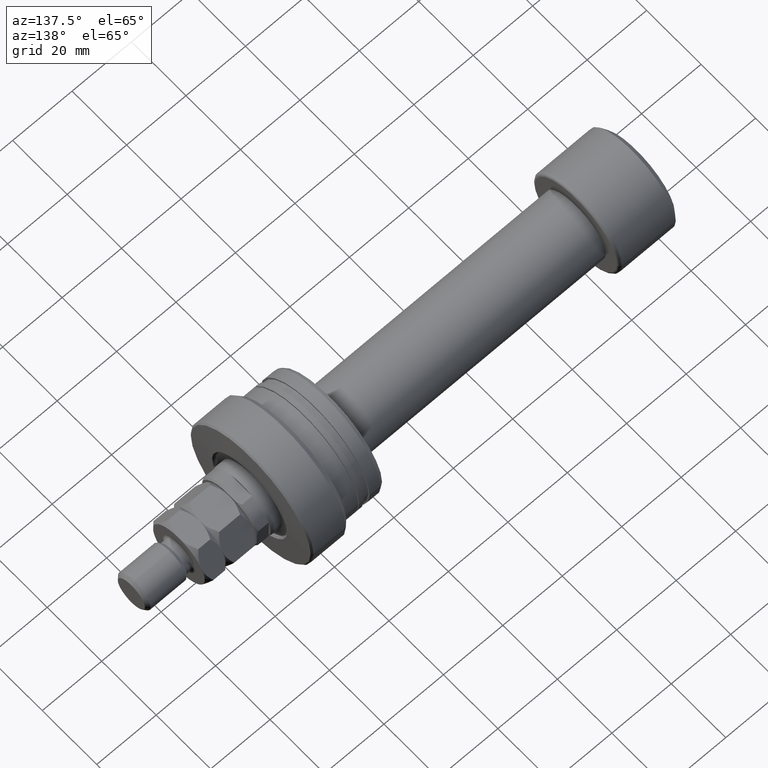
[diagram: clean part render]
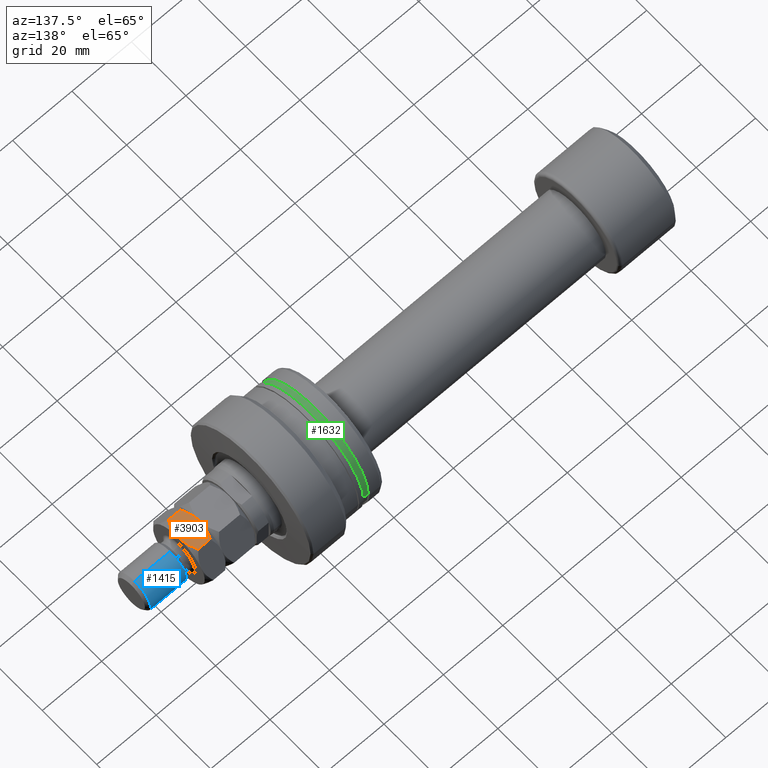
[diagram: same view with three faces highlighted in distinct colors, each labeled with its STEP entity id]
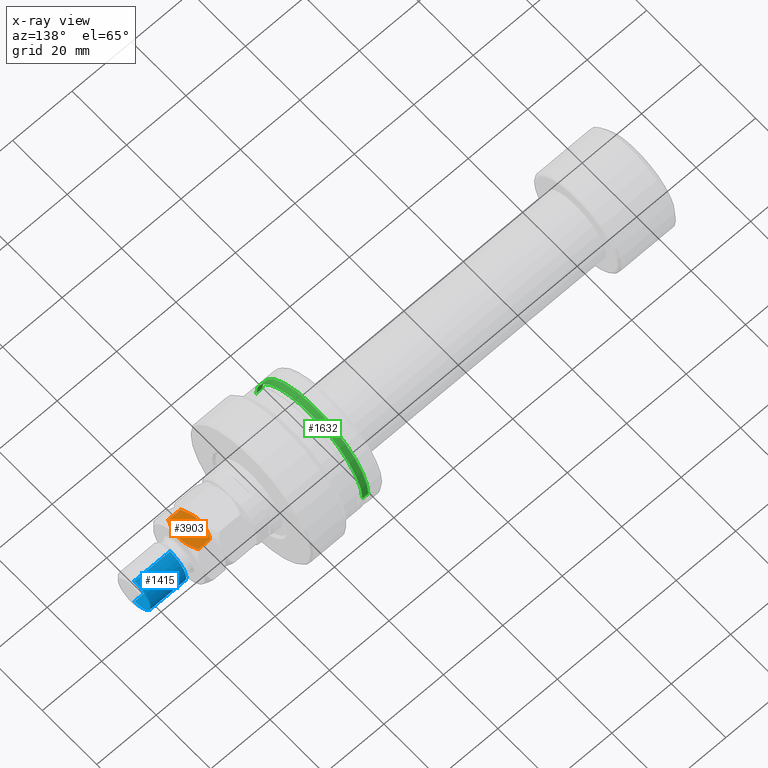
[diagram: x-ray of the same camera — body ghosted, the three highlighted faces saturated]
A machine part, auxiliary view with three faces highlighted in distinct colors.
The next image is the same camera in x-ray (body ghosted, the three faces saturated) — at least one of them is partly hidden behind the body in this view.
Their STEP definitions:

[orange] entity #3903 — the highlighted planar face has unit normal (0, -0, -1).
#103 = ORIENTED_EDGE ( 'NONE', *, *, #1419, .F. ) ;
#127 = CARTESIAN_POINT ( 'NONE',  ( -9.499999999999996447, -5.058804922144355842, 15.74335620297565086 ) ) ;
#135 = VERTEX_POINT ( 'NONE', #3658 ) ;
#150 = CARTESIAN_POINT ( 'NONE',  ( -9.500000000000000000, -4.625461644961925245, 15.94156980211695895 ) ) ;
#287 = CARTESIAN_POINT ( 'NONE',  ( -9.499999999999998224, 5.484827557301440670, 11.46965511460288312 ) ) ;
#311 = CARTESIAN_POINT ( 'NONE',  ( -9.499999999999996447, -3.283585621344903505, 10.54191787159927607 ) ) ;
#323 = CARTESIAN_POINT ( 'NONE',  ( -9.499999999999994671, 0.000000000000000000, 17.00000000000000000 ) ) ;
#359 = B_SPLINE_CURVE_WITH_KNOTS ( 'NONE', 3,
 ( #323, #948, #2305, #2647, #1707, #150, #127, #773 ),
 .UNSPECIFIED., .F., .F.,
 ( 4, 2, 2, 4 ),
 ( 0.02139070057665821978, 0.02425837263787775783, 0.02569220866848753032, 0.02712604469909729935 ),
 .UNSPECIFIED. ) ;
#593 = VERTEX_POINT ( 'NONE', #2378 ) ;
#646 = VERTEX_POINT ( 'NONE', #2107 ) ;
#770 = EDGE_CURVE ( 'NONE', #646, #135, #1798, .T. ) ;
#773 = CARTESIAN_POINT ( 'NONE',  ( -9.499999999999998224, -5.484827557301444223, 15.53034488539711511 ) ) ;
#812 = CARTESIAN_POINT ( 'NONE',  ( -9.499999999999998224, 0.4761117316842348179, 17.00000000000000000 ) ) ;
#818 = ORIENTED_EDGE ( 'NONE', *, *, #2389, .F. ) ;
#885 = B_SPLINE_CURVE_WITH_KNOTS ( 'NONE', 3,
 ( #2090, #3978, #3367, #2454, #3332, #3312, #1192, #2701, #812, #887 ),
 .UNSPECIFIED., .F., .F.,
 ( 4, 2, 2, 2, 4 ),
 ( 0.01567844649877152274, 0.01710651001824319700, 0.01853457353771487126, 0.01996263705718654552, 0.02139070057665821978 ),
 .UNSPECIFIED. ) ;
#887 = CARTESIAN_POINT ( 'NONE',  ( -9.499999999999994671, 0.000000000000000000, 17.00000000000000000 ) ) ;
#915 = CARTESIAN_POINT ( 'NONE',  ( -9.499999999999994671, 0.000000000000000000, 17.00000000000000000 ) ) ;
#919 = CARTESIAN_POINT ( 'NONE',  ( -9.499999999999998224, -5.058637179188066213, 11.25655992554618123 ) ) ;
#948 = CARTESIAN_POINT ( 'NONE',  ( -9.500000000000000000, -0.9560725362376348846, 16.99999999999999645 ) ) ;
#1121 = EDGE_CURVE ( 'NONE', #2993, #646, #1218, .T. ) ;
#1176 = B_SPLINE_CURVE_WITH_KNOTS ( 'NONE', 3,
 ( #1231, #2456, #2703, #2474, #4002, #2129, #1212, #287 ),
 .UNSPECIFIED., .F., .F.,
 ( 4, 2, 2, 4 ),
 ( 0.02139070057665822672, 0.02425837263787776477, 0.02569220866848753379, 0.02712604469909730281 ),
 .UNSPECIFIED. ) ;
#1192 = CARTESIAN_POINT ( 'NONE',  ( -9.499999999999994671, 1.905622789724482402, 16.82204041425849539 ) ) ;
#1212 = CARTESIAN_POINT ( 'NONE',  ( -9.499999999999998224, 5.058804922144354954, 11.25664379702434381 ) ) ;
#1218 = LINE ( 'NONE', #2519, #3531 ) ;
#1222 = VERTEX_POINT ( 'NONE', #915 ) ;
#1231 = CARTESIAN_POINT ( 'NONE',  ( -9.499999999999996447, 0.000000000000000000, 10.00000000000000000 ) ) ;
#1263 = CARTESIAN_POINT ( 'NONE',  ( -9.499999999999998224, -1.905622789724484401, 10.17795958574150461 ) ) ;
#1279 = CARTESIAN_POINT ( 'NONE',  ( -9.499999999999998224, -0.9601762266066399265, 10.03695139510887735 ) ) ;
#1291 = VECTOR ( 'NONE', #3779, 1000.000000000000000 ) ;
#1374 = ORIENTED_EDGE ( 'NONE', *, *, #2141, .F. ) ;
#1419 = EDGE_CURVE ( 'NONE', #2847, #1222, #885, .T. ) ;
#1700 = ORIENTED_EDGE ( 'NONE', *, *, #3836, .T. ) ;
#1707 = CARTESIAN_POINT ( 'NONE',  ( -9.499999999999998224, -3.739300393387249954, 16.29863145227363930 ) ) ;
#1798 = B_SPLINE_CURVE_WITH_KNOTS ( 'NONE', 3,
 ( #3130, #919, #1910, #1866, #311, #3420, #1263, #1279, #2163, #2523 ),
 .UNSPECIFIED., .F., .F.,
 ( 4, 2, 2, 2, 4 ),
 ( 0.01567844649877151927, 0.01710651001824319700, 0.01853457353771487126, 0.01996263705718654899, 0.02139070057665822672 ),
 .UNSPECIFIED. ) ;
#1866 = CARTESIAN_POINT ( 'NONE',  ( -9.499999999999992895, -3.733428111434933250, 10.69917511938905896 ) ) ;
#1910 = CARTESIAN_POINT ( 'NONE',  ( -9.499999999999998224, -4.621752210278242678, 11.05676471017158313 ) ) ;
#1919 = CARTESIAN_POINT ( 'NONE',  ( -9.499999999999998224, 5.484827557301440670, 17.00000000000000000 ) ) ;
#1967 = PLANE ( 'NONE',  #3443 ) ;
#2020 = CARTESIAN_POINT ( 'NONE',  ( -9.499999999999998224, -5.484827557301444223, 15.53034488539711511 ) ) ;
#2090 = CARTESIAN_POINT ( 'NONE',  ( -9.499999999999998224, 5.484827557301440670, 15.53034488539711688 ) ) ;
#2107 = CARTESIAN_POINT ( 'NONE',  ( -9.499999999999998224, -5.484827557301444223, 11.46965511460288667 ) ) ;
#2129 = CARTESIAN_POINT ( 'NONE',  ( -9.499999999999998224, 4.625461644961927021, 11.05843019788304105 ) ) ;
#2141 = EDGE_CURVE ( 'NONE', #1222, #2993, #359, .T. ) ;
#2163 = CARTESIAN_POINT ( 'NONE',  ( -9.500000000000000000, -0.4761117316842327640, 10.00000000000000355 ) ) ;
#2189 = LINE ( 'NONE', #3651, #1291 ) ;
#2305 = CARTESIAN_POINT ( 'NONE',  ( -9.499999999999998224, -1.895392204582988294, 16.85351563493425786 ) ) ;
#2351 = ORIENTED_EDGE ( 'NONE', *, *, #1121, .F. ) ;
#2378 = CARTESIAN_POINT ( 'NONE',  ( -9.499999999999998224, 5.484827557301440670, 11.46965511460288312 ) ) ;
#2389 = EDGE_CURVE ( 'NONE', #135, #593, #1176, .T. ) ;
#2454 = CARTESIAN_POINT ( 'NONE',  ( -9.499999999999998224, 3.733428111434936358, 16.30082488061093571 ) ) ;
#2456 = CARTESIAN_POINT ( 'NONE',  ( -9.499999999999998224, 0.9560725362376375491, 10.00000000000000533 ) ) ;
#2474 = CARTESIAN_POINT ( 'NONE',  ( -9.499999999999994671, 3.284280073076853768, 10.54188890834167758 ) ) ;
#2519 = CARTESIAN_POINT ( 'NONE',  ( -9.499999999999998224, -5.484827557301444223, 17.00000000000000000 ) ) ;
#2523 = CARTESIAN_POINT ( 'NONE',  ( -9.499999999999996447, 0.000000000000000000, 10.00000000000000000 ) ) ;
#2558 = DIRECTION ( 'NONE',  ( -0.000000000000000000, 0.000000000000000000, -1.000000000000000000 ) ) ;
#2647 = CARTESIAN_POINT ( 'NONE',  ( -9.499999999999994671, -3.284280073076854212, 16.45811109165831709 ) ) ;
#2701 = CARTESIAN_POINT ( 'NONE',  ( -9.500000000000000000, 0.9601762266066405926, 16.96304860489112798 ) ) ;
#2703 = CARTESIAN_POINT ( 'NONE',  ( -9.499999999999998224, 1.895392204582989848, 10.14648436506574392 ) ) ;
#2765 = CARTESIAN_POINT ( 'NONE',  ( -9.499999999999998224, 5.484827557301440670, 15.53034488539711688 ) ) ;
#2847 = VERTEX_POINT ( 'NONE', #2765 ) ;
#2860 = ORIENTED_EDGE ( 'NONE', *, *, #770, .F. ) ;
#2993 = VERTEX_POINT ( 'NONE', #2020 ) ;
#3089 = DIRECTION ( 'NONE',  ( -0.000000000000000000, -0.000000000000000000, -1.000000000000000000 ) ) ;
#3130 = CARTESIAN_POINT ( 'NONE',  ( -9.499999999999998224, -5.484827557301444223, 11.46965511460288667 ) ) ;
#3161 = DIRECTION ( 'NONE',  ( 1.000000000000000000, 0.000000000000000000, -0.000000000000000000 ) ) ;
#3312 = CARTESIAN_POINT ( 'NONE',  ( -9.499999999999998224, 2.369688663400940420, 16.71871151796998589 ) ) ;
#3332 = CARTESIAN_POINT ( 'NONE',  ( -9.499999999999998224, 3.283585621344901728, 16.45808212840071860 ) ) ;
#3367 = CARTESIAN_POINT ( 'NONE',  ( -9.499999999999998224, 4.621752210278240902, 15.94323528982842220 ) ) ;
#3420 = CARTESIAN_POINT ( 'NONE',  ( -9.500000000000000000, -2.369688663400941309, 10.28128848203001233 ) ) ;
#3443 = AXIS2_PLACEMENT_3D ( 'NONE', #1919, #3161, #2558 ) ;
#3531 = VECTOR ( 'NONE', #3089, 1000.000000000000000 ) ;
#3566 = FACE_OUTER_BOUND ( 'NONE', #3943, .T. ) ;
#3651 = CARTESIAN_POINT ( 'NONE',  ( -9.499999999999998224, 5.484827557301440670, 17.00000000000000000 ) ) ;
#3658 = CARTESIAN_POINT ( 'NONE',  ( -9.499999999999996447, 0.000000000000000000, 10.00000000000000000 ) ) ;
#3779 = DIRECTION ( 'NONE',  ( -0.000000000000000000, -0.000000000000000000, -1.000000000000000000 ) ) ;
#3836 = EDGE_CURVE ( 'NONE', #2847, #593, #2189, .T. ) ;
#3903 = ADVANCED_FACE ( 'NONE', ( #3566 ), #1967, .F. ) ;
#3943 = EDGE_LOOP ( 'NONE', ( #2860, #2351, #1374, #103, #1700, #818 ) ) ;
#3978 = CARTESIAN_POINT ( 'NONE',  ( -9.499999999999998224, 5.058637179188063548, 15.74344007445382232 ) ) ;
#4002 = CARTESIAN_POINT ( 'NONE',  ( -9.499999999999998224, 3.739300393387250843, 10.70136854772636248 ) ) ;

[blue] entity #1415 — the highlighted cylindrical surface (edge-blend (fillet) strip) has radius 6 mm, axis along (-1, -0, 0).
#172 = DIRECTION ( 'NONE',  ( 1.000000000000000000, 0.000000000000000000, 0.000000000000000000 ) ) ;
#250 = VERTEX_POINT ( 'NONE', #1561 ) ;
#595 = EDGE_CURVE ( 'NONE', #2902, #250, #2679, .T. ) ;
#742 = AXIS2_PLACEMENT_3D ( 'NONE', #1685, #2015, #172 ) ;
#777 = DIRECTION ( 'NONE',  ( -0.000000000000000000, -0.000000000000000000, -1.000000000000000000 ) ) ;
#856 = VERTEX_POINT ( 'NONE', #3555 ) ;
#918 = VERTEX_POINT ( 'NONE', #2652 ) ;
#1196 = CIRCLE ( 'NONE', #742, 6.000000000000000888 ) ;
#1274 = EDGE_LOOP ( 'NONE', ( #3140, #2114, #1666, #2403 ) ) ;
#1415 = ADVANCED_FACE ( 'NONE', ( #3886 ), #3278, .T. ) ;
#1422 = DIRECTION ( 'NONE',  ( -0.000000000000000000, -0.000000000000000000, -1.000000000000000000 ) ) ;
#1455 = CARTESIAN_POINT ( 'NONE',  ( 0.000000000000000000, 0.000000000000000000, 20.00000000000000711 ) ) ;
#1488 = DIRECTION ( 'NONE',  ( 1.000000000000000000, 0.000000000000000000, 0.000000000000000000 ) ) ;
#1561 = CARTESIAN_POINT ( 'NONE',  ( -6.000000000000000888, 0.000000000000000000, 20.00000000000000711 ) ) ;
#1666 = ORIENTED_EDGE ( 'NONE', *, *, #595, .T. ) ;
#1685 = CARTESIAN_POINT ( 'NONE',  ( 0.000000000000000000, 0.000000000000000000, 32.00000000000000000 ) ) ;
#1689 = CARTESIAN_POINT ( 'NONE',  ( 6.000000000000000888, 7.347880794884120722E-16, 33.00000000000000000 ) ) ;
#1727 = CARTESIAN_POINT ( 'NONE',  ( 0.000000000000000000, 0.000000000000000000, 33.00000000000000000 ) ) ;
#1844 = CARTESIAN_POINT ( 'NONE',  ( -6.000000000000000888, 0.000000000000000000, 33.00000000000000000 ) ) ;
#2015 = DIRECTION ( 'NONE',  ( 0.000000000000000000, 0.000000000000000000, -1.000000000000000000 ) ) ;
#2114 = ORIENTED_EDGE ( 'NONE', *, *, #2987, .T. ) ;
#2281 = EDGE_CURVE ( 'NONE', #856, #918, #1196, .T. ) ;
#2403 = ORIENTED_EDGE ( 'NONE', *, *, #3352, .F. ) ;
#2652 = CARTESIAN_POINT ( 'NONE',  ( 6.000000000000000888, 7.347880794884120722E-16, 32.00000000000000000 ) ) ;
#2661 = VECTOR ( 'NONE', #2837, 1000.000000000000000 ) ;
#2666 = DIRECTION ( 'NONE',  ( -1.000000000000000000, 0.000000000000000000, 0.000000000000000000 ) ) ;
#2679 = CIRCLE ( 'NONE', #3331, 6.000000000000000888 ) ;
#2837 = DIRECTION ( 'NONE',  ( -0.000000000000000000, -0.000000000000000000, -1.000000000000000000 ) ) ;
#2902 = VERTEX_POINT ( 'NONE', #3730 ) ;
#2981 = VECTOR ( 'NONE', #777, 1000.000000000000000 ) ;
#2987 = EDGE_CURVE ( 'NONE', #918, #2902, #3191, .T. ) ;
#3140 = ORIENTED_EDGE ( 'NONE', *, *, #2281, .T. ) ;
#3191 = LINE ( 'NONE', #1689, #2981 ) ;
#3278 = CYLINDRICAL_SURFACE ( 'NONE', #3666, 6.000000000000000888 ) ;
#3331 = AXIS2_PLACEMENT_3D ( 'NONE', #1455, #3622, #1488 ) ;
#3352 = EDGE_CURVE ( 'NONE', #856, #250, #3411, .T. ) ;
#3411 = LINE ( 'NONE', #1844, #2661 ) ;
#3555 = CARTESIAN_POINT ( 'NONE',  ( -6.000000000000000888, 0.000000000000000000, 32.00000000000000000 ) ) ;
#3622 = DIRECTION ( 'NONE',  ( -0.000000000000000000, -0.000000000000000000, 1.000000000000000000 ) ) ;
#3666 = AXIS2_PLACEMENT_3D ( 'NONE', #1727, #1422, #2666 ) ;
#3730 = CARTESIAN_POINT ( 'NONE',  ( 6.000000000000000888, 7.347880794884120722E-16, 20.00000000000000711 ) ) ;
#3886 = FACE_OUTER_BOUND ( 'NONE', #1274, .T. ) ;

[green] entity #1632 — the highlighted cylindrical surface (partial cylindrical patch) has radius 19.5 mm, axis along (-1, 0, 0).
#8 = CARTESIAN_POINT ( 'NONE',  ( -20.79999999999998650, -1.264526912837436104E-14, 0.000000000000000000 ) ) ;
#19 = VECTOR ( 'NONE', #869, 1000.000000000000000 ) ;
#91 = DIRECTION ( 'NONE',  ( -1.245442495573093370E-15, -1.000000000000000000, 0.000000000000000000 ) ) ;
#143 = DIRECTION ( 'NONE',  ( -1.245442495573093370E-15, -1.000000000000000000, 0.000000000000000000 ) ) ;
#669 = ORIENTED_EDGE ( 'NONE', *, *, #1510, .T. ) ;
#744 = VERTEX_POINT ( 'NONE', #2242 ) ;
#861 = CARTESIAN_POINT ( 'NONE',  ( -30.28002276692734895, -19.49999999999998224, 0.000000000000000000 ) ) ;
#869 = DIRECTION ( 'NONE',  ( -1.000000000000000000, 1.333885945136072597E-15, -0.000000000000000000 ) ) ;
#924 = FACE_OUTER_BOUND ( 'NONE', #3935, .T. ) ;
#1117 = ORIENTED_EDGE ( 'NONE', *, *, #1734, .F. ) ;
#1252 = AXIS2_PLACEMENT_3D ( 'NONE', #1268, #2203, #2167 ) ;
#1268 = CARTESIAN_POINT ( 'NONE',  ( -30.28002276692732408, 0.000000000000000000, 0.000000000000000000 ) ) ;
#1269 = VECTOR ( 'NONE', #3618, 1000.000000000000000 ) ;
#1510 = EDGE_CURVE ( 'NONE', #2937, #744, #1761, .T. ) ;
#1566 = AXIS2_PLACEMENT_3D ( 'NONE', #1721, #2875, #143 ) ;
#1569 = CARTESIAN_POINT ( 'NONE',  ( -20.80000000000000782, -19.49999999999999645, 0.000000000000000000 ) ) ;
#1632 = ADVANCED_FACE ( 'NONE', ( #924 ), #1856, .T. ) ;
#1721 = CARTESIAN_POINT ( 'NONE',  ( -22.80878161770236190, -9.965783561673457325E-15, 0.000000000000000000 ) ) ;
#1734 = EDGE_CURVE ( 'NONE', #2441, #744, #2228, .T. ) ;
#1761 = LINE ( 'NONE', #3940, #19 ) ;
#1856 = CYLINDRICAL_SURFACE ( 'NONE', #1252, 19.49999999999998224 ) ;
#2122 = LINE ( 'NONE', #861, #1269 ) ;
#2167 = DIRECTION ( 'NONE',  ( -1.245442495573093370E-15, -1.000000000000000000, 0.000000000000000000 ) ) ;
#2203 = DIRECTION ( 'NONE',  ( -1.000000000000000000, 1.333885945136072597E-15, -0.000000000000000000 ) ) ;
#2228 = CIRCLE ( 'NONE', #1566, 19.49999999999998224 ) ;
#2242 = CARTESIAN_POINT ( 'NONE',  ( -22.80878161770233703, 19.49999999999997158, 2.388061258337336967E-15 ) ) ;
#2271 = CIRCLE ( 'NONE', #2850, 19.49999999999998224 ) ;
#2385 = ORIENTED_EDGE ( 'NONE', *, *, #2683, .F. ) ;
#2441 = VERTEX_POINT ( 'NONE', #3983 ) ;
#2683 = EDGE_CURVE ( 'NONE', #3320, #2441, #2122, .T. ) ;
#2850 = AXIS2_PLACEMENT_3D ( 'NONE', #8, #2872, #91 ) ;
#2872 = DIRECTION ( 'NONE',  ( -1.000000000000000000, 1.333885945136072597E-15, -0.000000000000000000 ) ) ;
#2875 = DIRECTION ( 'NONE',  ( -1.000000000000000000, 1.333885945136072597E-15, -0.000000000000000000 ) ) ;
#2937 = VERTEX_POINT ( 'NONE', #3572 ) ;
#3261 = ORIENTED_EDGE ( 'NONE', *, *, #3480, .T. ) ;
#3320 = VERTEX_POINT ( 'NONE', #1569 ) ;
#3480 = EDGE_CURVE ( 'NONE', #3320, #2937, #2271, .T. ) ;
#3572 = CARTESIAN_POINT ( 'NONE',  ( -20.79999999999996163, 19.49999999999996803, 2.388061258337336572E-15 ) ) ;
#3618 = DIRECTION ( 'NONE',  ( -1.000000000000000000, 1.333885945136072597E-15, -0.000000000000000000 ) ) ;
#3935 = EDGE_LOOP ( 'NONE', ( #3261, #669, #1117, #2385 ) ) ;
#3940 = CARTESIAN_POINT ( 'NONE',  ( -30.28002276692729922, 19.49999999999998224, 2.388061258337336572E-15 ) ) ;
#3983 = CARTESIAN_POINT ( 'NONE',  ( -22.80878161770238677, -19.49999999999999289, 0.000000000000000000 ) ) ;